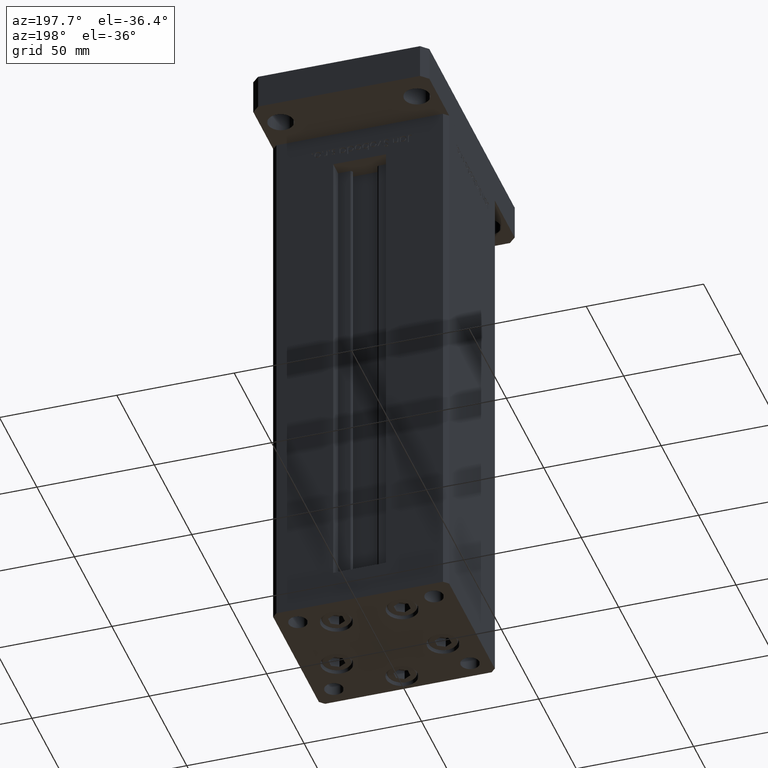
[diagram: clean part render]
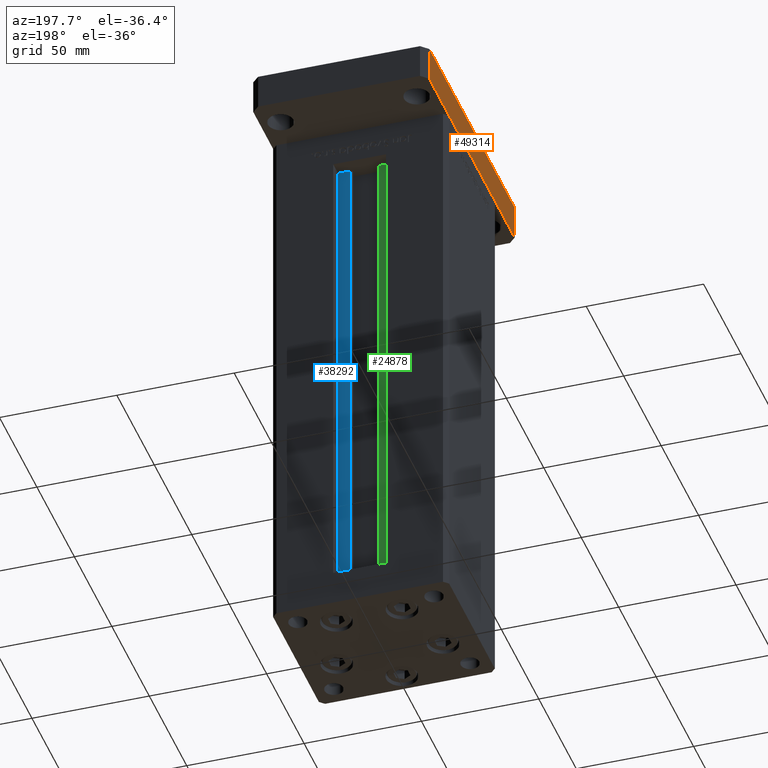
[diagram: same view with three faces highlighted in distinct colors, each labeled with its STEP entity id]
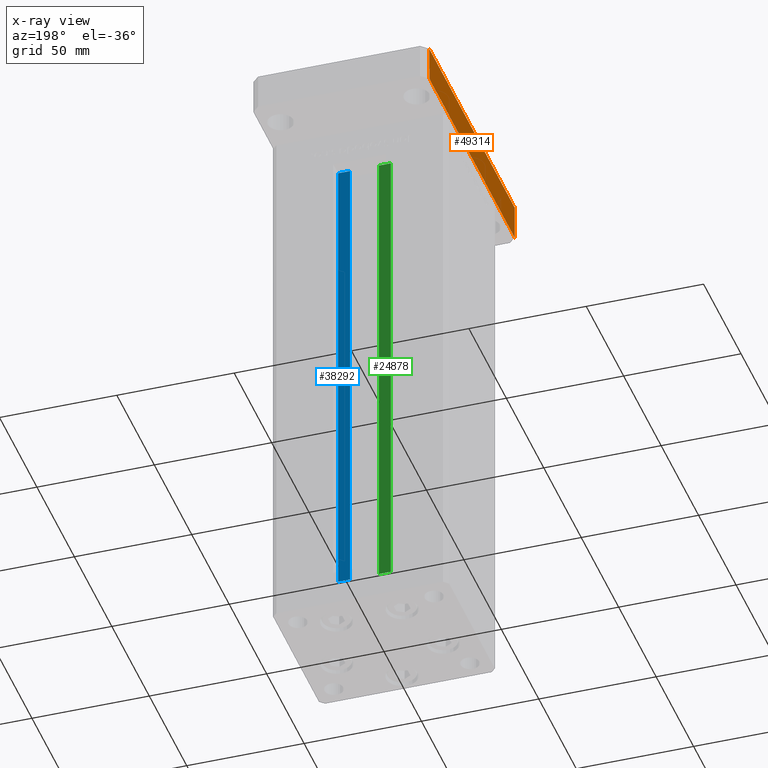
[diagram: x-ray of the same camera — body ghosted, the three highlighted faces saturated]
A machine part, auxiliary view with three faces highlighted in distinct colors.
The next image is the same camera in x-ray (body ghosted, the three faces saturated) — at least one of them is partly hidden behind the body in this view.
Their STEP definitions:

[orange] entity #49314 — the highlighted planar face has unit normal (1, -0, 0).
#2992 = VERTEX_POINT ( 'NONE', #52808 ) ;
#3390 = CARTESIAN_POINT ( 'NONE',  ( -37.49999999999990763, 57.00000000000000711, 15.00000000000000000 ) ) ;
#4980 = VECTOR ( 'NONE', #27664, 1000.000000000000000 ) ;
#6485 = EDGE_CURVE ( 'NONE', #10181, #44776, #30581, .T. ) ;
#6819 = CARTESIAN_POINT ( 'NONE',  ( -37.49999999999990763, 57.00000000000000711, 15.00000000000000000 ) ) ;
#7672 = AXIS2_PLACEMENT_3D ( 'NONE', #3390, #19374, #40523 ) ;
#7937 = VERTEX_POINT ( 'NONE', #52793 ) ;
#10181 = VERTEX_POINT ( 'NONE', #21813 ) ;
#10195 = CARTESIAN_POINT ( 'NONE',  ( -37.49999999999990763, 57.00000000000000711, 0.000000000000000000 ) ) ;
#14109 = EDGE_CURVE ( 'NONE', #10181, #2992, #38811, .T. ) ;
#14319 = ORIENTED_EDGE ( 'NONE', *, *, #6485, .T. ) ;
#14833 = DIRECTION ( 'NONE',  ( -0.000000000000000000, -0.000000000000000000, -1.000000000000000000 ) ) ;
#19374 = DIRECTION ( 'NONE',  ( 1.000000000000000000, -7.304098846218132695E-16, 0.000000000000000000 ) ) ;
#21813 = CARTESIAN_POINT ( 'NONE',  ( -37.49999999999990763, 57.00000000000000711, 15.00000000000000000 ) ) ;
#22791 = LINE ( 'NONE', #32278, #4980 ) ;
#25604 = LINE ( 'NONE', #46480, #40312 ) ;
#26514 = CARTESIAN_POINT ( 'NONE',  ( -37.49999999999990763, 57.00000000000000711, 15.00000000000000000 ) ) ;
#27664 = DIRECTION ( 'NONE',  ( -7.304098846218132695E-16, -1.000000000000000000, 0.000000000000000000 ) ) ;
#30283 = EDGE_CURVE ( 'NONE', #2992, #7937, #25604, .T. ) ;
#30581 = LINE ( 'NONE', #26514, #45778 ) ;
#32278 = CARTESIAN_POINT ( 'NONE',  ( -37.49999999999990763, 57.00000000000000711, 0.000000000000000000 ) ) ;
#34738 = DIRECTION ( 'NONE',  ( -7.304098846218132695E-16, -1.000000000000000000, 0.000000000000000000 ) ) ;
#35529 = EDGE_CURVE ( 'NONE', #44776, #7937, #22791, .T. ) ;
#38811 = LINE ( 'NONE', #6819, #50391 ) ;
#40312 = VECTOR ( 'NONE', #45680, 1000.000000000000000 ) ;
#40523 = DIRECTION ( 'NONE',  ( 7.304098846218132695E-16, 1.000000000000000000, 0.000000000000000000 ) ) ;
#44776 = VERTEX_POINT ( 'NONE', #10195 ) ;
#45680 = DIRECTION ( 'NONE',  ( -0.000000000000000000, -0.000000000000000000, -1.000000000000000000 ) ) ;
#45778 = VECTOR ( 'NONE', #14833, 1000.000000000000000 ) ;
#46480 = CARTESIAN_POINT ( 'NONE',  ( -37.49999999999999289, -57.00000000000002132, 15.00000000000000000 ) ) ;
#47334 = ORIENTED_EDGE ( 'NONE', *, *, #14109, .F. ) ;
#47876 = FACE_OUTER_BOUND ( 'NONE', #50624, .T. ) ;
#48118 = ORIENTED_EDGE ( 'NONE', *, *, #30283, .F. ) ;
#48681 = PLANE ( 'NONE',  #7672 ) ;
#48917 = ORIENTED_EDGE ( 'NONE', *, *, #35529, .T. ) ;
#49314 = ADVANCED_FACE ( 'NONE', ( #47876 ), #48681, .F. ) ;
#50391 = VECTOR ( 'NONE', #34738, 1000.000000000000000 ) ;
#50624 = EDGE_LOOP ( 'NONE', ( #48917, #48118, #47334, #14319 ) ) ;
#52793 = CARTESIAN_POINT ( 'NONE',  ( -37.49999999999999289, -57.00000000000002132, 0.000000000000000000 ) ) ;
#52808 = CARTESIAN_POINT ( 'NONE',  ( -37.49999999999999289, -57.00000000000002132, 15.00000000000000000 ) ) ;

[blue] entity #38292 — the highlighted planar face has unit normal (0, -1, 0).
#267 = FACE_OUTER_BOUND ( 'NONE', #1815, .T. ) ;
#1290 = VERTEX_POINT ( 'NONE', #46765 ) ;
#1815 = EDGE_LOOP ( 'NONE', ( #41220, #49799, #10039, #30941 ) ) ;
#2073 = DIRECTION ( 'NONE',  ( -1.000000000000000000, 0.000000000000000000, 0.000000000000000000 ) ) ;
#8007 = LINE ( 'NONE', #16130, #20879 ) ;
#8482 = EDGE_CURVE ( 'NONE', #30898, #1290, #46982, .T. ) ;
#10039 = ORIENTED_EDGE ( 'NONE', *, *, #13441, .T. ) ;
#11048 = VECTOR ( 'NONE', #31470, 1000.000000000000000 ) ;
#12069 = DIRECTION ( 'NONE',  ( -0.000000000000000000, -0.000000000000000000, 1.000000000000000000 ) ) ;
#12952 = VECTOR ( 'NONE', #21755, 1000.000000000000000 ) ;
#13441 = EDGE_CURVE ( 'NONE', #13494, #41953, #8007, .T. ) ;
#13494 = VERTEX_POINT ( 'NONE', #28879 ) ;
#14790 = CARTESIAN_POINT ( 'NONE',  ( 0.000000000000000000, 25.99999999999999289, 206.0000000000000000 ) ) ;
#16130 = CARTESIAN_POINT ( 'NONE',  ( 6.183333333334001480, 25.99999999999999289, 0.000000000000000000 ) ) ;
#20683 = CARTESIAN_POINT ( 'NONE',  ( 6.183333333334001480, 25.99999999999999289, 206.0000000000000000 ) ) ;
#20849 = DIRECTION ( 'NONE',  ( 0.000000000000000000, -1.000000000000000000, 0.000000000000000000 ) ) ;
#20879 = VECTOR ( 'NONE', #12069, 1000.000000000000000 ) ;
#21755 = DIRECTION ( 'NONE',  ( -0.000000000000000000, -0.000000000000000000, 1.000000000000000000 ) ) ;
#28347 = VECTOR ( 'NONE', #2073, 1000.000000000000000 ) ;
#28879 = CARTESIAN_POINT ( 'NONE',  ( 6.183333333334001480, 25.99999999999999289, 0.000000000000000000 ) ) ;
#29267 = PLANE ( 'NONE',  #36812 ) ;
#30898 = VERTEX_POINT ( 'NONE', #49638 ) ;
#30941 = ORIENTED_EDGE ( 'NONE', *, *, #44710, .F. ) ;
#31470 = DIRECTION ( 'NONE',  ( 1.000000000000000000, 0.000000000000000000, 0.000000000000000000 ) ) ;
#32800 = CARTESIAN_POINT ( 'NONE',  ( 6.183333333334001480, 25.99999999999999289, 0.000000000000000000 ) ) ;
#35416 = EDGE_CURVE ( 'NONE', #13494, #30898, #51820, .T. ) ;
#36812 = AXIS2_PLACEMENT_3D ( 'NONE', #32800, #20849, #36858 ) ;
#36858 = DIRECTION ( 'NONE',  ( 0.000000000000000000, -0.000000000000000000, -1.000000000000000000 ) ) ;
#38292 = ADVANCED_FACE ( 'NONE', ( #267 ), #29267, .F. ) ;
#41220 = ORIENTED_EDGE ( 'NONE', *, *, #8482, .F. ) ;
#41953 = VERTEX_POINT ( 'NONE', #20683 ) ;
#44710 = EDGE_CURVE ( 'NONE', #1290, #41953, #47894, .T. ) ;
#46445 = CARTESIAN_POINT ( 'NONE',  ( 11.25000000000000178, 25.99999999999999289, 0.000000000000000000 ) ) ;
#46765 = CARTESIAN_POINT ( 'NONE',  ( 11.25000000000000178, 25.99999999999999289, 206.0000000000000000 ) ) ;
#46982 = LINE ( 'NONE', #46445, #12952 ) ;
#47206 = CARTESIAN_POINT ( 'NONE',  ( 6.183333333334001480, 25.99999999999999289, 0.000000000000000000 ) ) ;
#47894 = LINE ( 'NONE', #14790, #28347 ) ;
#49638 = CARTESIAN_POINT ( 'NONE',  ( 11.25000000000000178, 25.99999999999999289, 0.000000000000000000 ) ) ;
#49799 = ORIENTED_EDGE ( 'NONE', *, *, #35416, .F. ) ;
#51820 = LINE ( 'NONE', #47206, #11048 ) ;

[green] entity #24878 — the highlighted planar face has unit normal (0, -1, 0).
#2258 = DIRECTION ( 'NONE',  ( 0.000000000000000000, 0.000000000000000000, -1.000000000000000000 ) ) ;
#2520 = CARTESIAN_POINT ( 'NONE',  ( -6.183333333334001480, 25.99999999999999289, 0.000000000000000000 ) ) ;
#4035 = VERTEX_POINT ( 'NONE', #32148 ) ;
#4778 = ORIENTED_EDGE ( 'NONE', *, *, #5418, .T. ) ;
#5418 = EDGE_CURVE ( 'NONE', #26394, #4035, #27847, .T. ) ;
#7508 = CARTESIAN_POINT ( 'NONE',  ( -11.25000000000000178, 25.99999999999999289, 0.000000000000000000 ) ) ;
#8294 = CARTESIAN_POINT ( 'NONE',  ( -11.25000000000000178, 25.99999999999999289, 0.000000000000000000 ) ) ;
#10740 = AXIS2_PLACEMENT_3D ( 'NONE', #2520, #40456, #2258 ) ;
#16430 = VECTOR ( 'NONE', #48199, 1000.000000000000000 ) ;
#17370 = ORIENTED_EDGE ( 'NONE', *, *, #38546, .F. ) ;
#17751 = ORIENTED_EDGE ( 'NONE', *, *, #32659, .F. ) ;
#19086 = LINE ( 'NONE', #38898, #23820 ) ;
#23820 = VECTOR ( 'NONE', #47317, 1000.000000000000000 ) ;
#24878 = ADVANCED_FACE ( 'NONE', ( #27723 ), #27983, .F. ) ;
#25082 = CARTESIAN_POINT ( 'NONE',  ( -6.183333333334001480, 25.99999999999999289, 0.000000000000000000 ) ) ;
#25132 = DIRECTION ( 'NONE',  ( -1.000000000000000000, 0.000000000000000000, 0.000000000000000000 ) ) ;
#26394 = VERTEX_POINT ( 'NONE', #8294 ) ;
#27011 = CARTESIAN_POINT ( 'NONE',  ( -6.183333333334001480, 25.99999999999999289, 206.0000000000000000 ) ) ;
#27723 = FACE_OUTER_BOUND ( 'NONE', #33350, .T. ) ;
#27847 = LINE ( 'NONE', #7508, #16430 ) ;
#27983 = PLANE ( 'NONE',  #10740 ) ;
#28439 = EDGE_CURVE ( 'NONE', #26394, #34073, #19086, .T. ) ;
#28738 = DIRECTION ( 'NONE',  ( -0.000000000000000000, -0.000000000000000000, 1.000000000000000000 ) ) ;
#30572 = ORIENTED_EDGE ( 'NONE', *, *, #28439, .F. ) ;
#32148 = CARTESIAN_POINT ( 'NONE',  ( -11.25000000000000178, 25.99999999999999289, 206.0000000000000000 ) ) ;
#32659 = EDGE_CURVE ( 'NONE', #34073, #44766, #46083, .T. ) ;
#33350 = EDGE_LOOP ( 'NONE', ( #17751, #30572, #4778, #17370 ) ) ;
#34073 = VERTEX_POINT ( 'NONE', #25082 ) ;
#34257 = VECTOR ( 'NONE', #25132, 1000.000000000000000 ) ;
#38546 = EDGE_CURVE ( 'NONE', #44766, #4035, #49289, .T. ) ;
#38898 = CARTESIAN_POINT ( 'NONE',  ( -6.183333333334001480, 25.99999999999999289, 0.000000000000000000 ) ) ;
#40456 = DIRECTION ( 'NONE',  ( 0.000000000000000000, -1.000000000000000000, -0.000000000000000000 ) ) ;
#40869 = CARTESIAN_POINT ( 'NONE',  ( 0.000000000000000000, 25.99999999999999289, 206.0000000000000000 ) ) ;
#44766 = VERTEX_POINT ( 'NONE', #27011 ) ;
#46083 = LINE ( 'NONE', #46346, #48227 ) ;
#46346 = CARTESIAN_POINT ( 'NONE',  ( -6.183333333334001480, 25.99999999999999289, 0.000000000000000000 ) ) ;
#47317 = DIRECTION ( 'NONE',  ( 1.000000000000000000, -0.000000000000000000, -0.000000000000000000 ) ) ;
#48199 = DIRECTION ( 'NONE',  ( -0.000000000000000000, -0.000000000000000000, 1.000000000000000000 ) ) ;
#48227 = VECTOR ( 'NONE', #28738, 1000.000000000000000 ) ;
#49289 = LINE ( 'NONE', #40869, #34257 ) ;